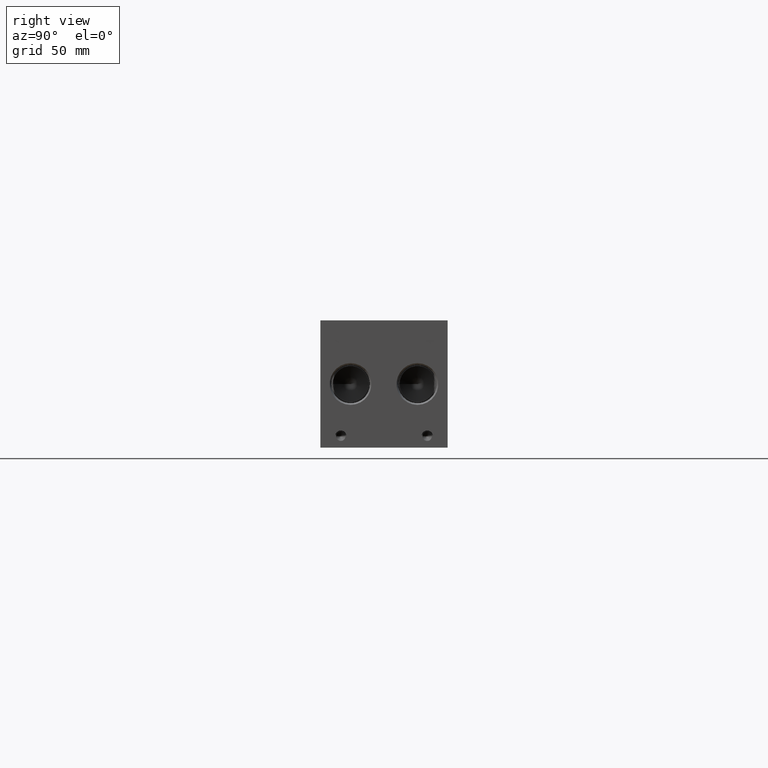
[diagram: clean part render]
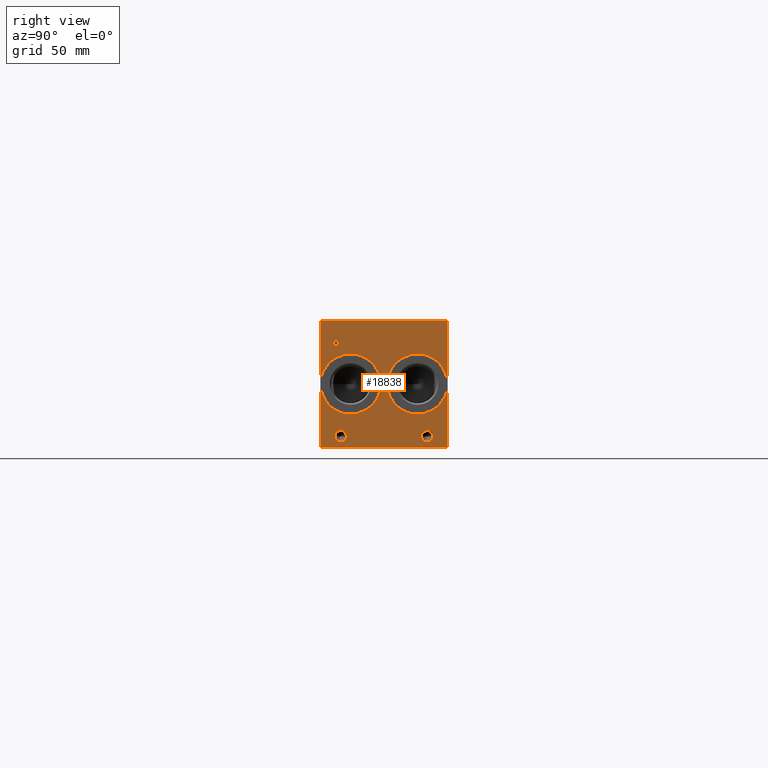
[diagram: same view with one face highlighted and labeled with its STEP entity id]
A machine part, right view. The second image highlights one B-rep face of the part: STEP entity #18838.
In plain terms, the highlighted planar face has unit normal (1, 0, 0).
Its self-contained STEP definition (entity closure, byte-faithful):
#310=CIRCLE('',#19883,3.9624);
#311=CIRCLE('',#19884,3.9624);
#312=CIRCLE('',#19885,3.9624);
#313=CIRCLE('',#19886,3.9624);
#314=CIRCLE('',#19887,21.0185);
#315=CIRCLE('',#19888,21.0185);
#316=CIRCLE('',#19889,21.0185);
#317=CIRCLE('',#19890,21.0185);
#956=FACE_BOUND('',#2957,.T.);
#957=FACE_BOUND('',#2958,.T.);
#958=FACE_BOUND('',#2959,.T.);
#959=FACE_BOUND('',#2960,.T.);
#960=FACE_BOUND('',#2961,.T.);
#961=FACE_BOUND('',#2962,.T.);
#1164=B_SPLINE_CURVE_WITH_KNOTS('',2,(#25967,#25968,#25969,#25970),
 .UNSPECIFIED.,.F.,.F.,(3,1,3),(0.,1.,2.),.UNSPECIFIED.);
#1166=B_SPLINE_CURVE_WITH_KNOTS('',2,(#25988,#25989,#25990,#25991),
 .UNSPECIFIED.,.F.,.F.,(3,1,3),(0.,1.,2.),.UNSPECIFIED.);
#1168=B_SPLINE_CURVE_WITH_KNOTS('',2,(#26037,#26038,#26039,#26040),
 .UNSPECIFIED.,.F.,.F.,(3,1,3),(0.,1.,2.),.UNSPECIFIED.);
#1170=B_SPLINE_CURVE_WITH_KNOTS('',2,(#26055,#26056,#26057,#26058),
 .UNSPECIFIED.,.F.,.F.,(3,1,3),(0.,1.,2.),.UNSPECIFIED.);
#1917=FACE_OUTER_BOUND('',#2956,.T.);
#2956=EDGE_LOOP('',(#12255,#12256,#12257,#12258));
#2957=EDGE_LOOP('',(#12259,#12260,#12261,#12262,#12263,#12264,#12265,#12266));
#2958=EDGE_LOOP('',(#12267,#12268));
#2959=EDGE_LOOP('',(#12269,#12270));
#2960=EDGE_LOOP('',(#12271,#12272));
#2961=EDGE_LOOP('',(#12273,#12274));
#2962=EDGE_LOOP('',(#12275,#12276,#12277,#12278,#12279,#12280,#12281,#12282,
#12283));
#4168=LINE('',#25817,#5801);
#4172=LINE('',#25825,#5805);
#4175=LINE('',#25831,#5808);
#4178=LINE('',#25837,#5811);
#4181=LINE('',#25843,#5814);
#4184=LINE('',#25849,#5817);
#4187=LINE('',#25855,#5820);
#4190=LINE('',#25860,#5823);
#4208=LINE('',#26000,#5841);
#4211=LINE('',#26006,#5844);
#4214=LINE('',#26012,#5847);
#4217=LINE('',#26018,#5850);
#4220=LINE('',#26024,#5853);
#4224=LINE('',#26067,#5857);
#4225=LINE('',#26069,#5858);
#4226=LINE('',#26071,#5859);
#4227=LINE('',#26072,#5860);
#5801=VECTOR('',#21306,10.);
#5805=VECTOR('',#21312,10.);
#5808=VECTOR('',#21317,10.);
#5811=VECTOR('',#21322,10.);
#5814=VECTOR('',#21327,10.);
#5817=VECTOR('',#21332,10.);
#5820=VECTOR('',#21337,10.);
#5823=VECTOR('',#21342,10.);
#5841=VECTOR('',#21370,10.);
#5844=VECTOR('',#21375,10.);
#5847=VECTOR('',#21380,10.);
#5850=VECTOR('',#21385,10.);
#5853=VECTOR('',#21390,10.);
#5857=VECTOR('',#21398,10.);
#5858=VECTOR('',#21399,10.);
#5859=VECTOR('',#21400,10.);
#5860=VECTOR('',#21401,10.);
#7434=VERTEX_POINT('',#25815);
#7435=VERTEX_POINT('',#25816);
#7438=VERTEX_POINT('',#25824);
#7440=VERTEX_POINT('',#25830);
#7442=VERTEX_POINT('',#25836);
#7444=VERTEX_POINT('',#25842);
#7446=VERTEX_POINT('',#25848);
#7448=VERTEX_POINT('',#25854);
#7464=VERTEX_POINT('',#25965);
#7465=VERTEX_POINT('',#25966);
#7468=VERTEX_POINT('',#25987);
#7470=VERTEX_POINT('',#25999);
#7472=VERTEX_POINT('',#26005);
#7474=VERTEX_POINT('',#26011);
#7476=VERTEX_POINT('',#26017);
#7478=VERTEX_POINT('',#26023);
#7480=VERTEX_POINT('',#26036);
#7482=VERTEX_POINT('',#26065);
#7483=VERTEX_POINT('',#26066);
#7484=VERTEX_POINT('',#26068);
#7485=VERTEX_POINT('',#26070);
#7486=VERTEX_POINT('',#26073);
#7487=VERTEX_POINT('',#26074);
#7488=VERTEX_POINT('',#26077);
#7489=VERTEX_POINT('',#26078);
#7490=VERTEX_POINT('',#26081);
#7491=VERTEX_POINT('',#26082);
#7492=VERTEX_POINT('',#26085);
#7493=VERTEX_POINT('',#26086);
#9367=EDGE_CURVE('',#7434,#7435,#4168,.T.);
#9371=EDGE_CURVE('',#7438,#7434,#4172,.T.);
#9374=EDGE_CURVE('',#7440,#7438,#4175,.T.);
#9377=EDGE_CURVE('',#7442,#7440,#4178,.T.);
#9380=EDGE_CURVE('',#7444,#7442,#4181,.T.);
#9383=EDGE_CURVE('',#7446,#7444,#4184,.T.);
#9386=EDGE_CURVE('',#7448,#7446,#4187,.T.);
#9389=EDGE_CURVE('',#7435,#7448,#4190,.T.);
#9412=EDGE_CURVE('',#7464,#7465,#1164,.T.);
#9416=EDGE_CURVE('',#7468,#7464,#1166,.T.);
#9419=EDGE_CURVE('',#7470,#7468,#4208,.T.);
#9422=EDGE_CURVE('',#7472,#7470,#4211,.T.);
#9425=EDGE_CURVE('',#7474,#7472,#4214,.T.);
#9428=EDGE_CURVE('',#7476,#7474,#4217,.T.);
#9431=EDGE_CURVE('',#7478,#7476,#4220,.T.);
#9434=EDGE_CURVE('',#7480,#7478,#1168,.T.);
#9437=EDGE_CURVE('',#7465,#7480,#1170,.T.);
#9439=EDGE_CURVE('',#7482,#7483,#4224,.T.);
#9440=EDGE_CURVE('',#7483,#7484,#4225,.T.);
#9441=EDGE_CURVE('',#7485,#7484,#4226,.T.);
#9442=EDGE_CURVE('',#7482,#7485,#4227,.T.);
#9443=EDGE_CURVE('',#7486,#7487,#310,.T.);
#9444=EDGE_CURVE('',#7487,#7486,#311,.T.);
#9445=EDGE_CURVE('',#7488,#7489,#312,.T.);
#9446=EDGE_CURVE('',#7489,#7488,#313,.T.);
#9447=EDGE_CURVE('',#7490,#7491,#314,.T.);
#9448=EDGE_CURVE('',#7491,#7490,#315,.T.);
#9449=EDGE_CURVE('',#7492,#7493,#316,.T.);
#9450=EDGE_CURVE('',#7493,#7492,#317,.T.);
#12255=ORIENTED_EDGE('',*,*,#9439,.T.);
#12256=ORIENTED_EDGE('',*,*,#9440,.T.);
#12257=ORIENTED_EDGE('',*,*,#9441,.F.);
#12258=ORIENTED_EDGE('',*,*,#9442,.F.);
#12259=ORIENTED_EDGE('',*,*,#9367,.T.);
#12260=ORIENTED_EDGE('',*,*,#9389,.T.);
#12261=ORIENTED_EDGE('',*,*,#9386,.T.);
#12262=ORIENTED_EDGE('',*,*,#9383,.T.);
#12263=ORIENTED_EDGE('',*,*,#9380,.T.);
#12264=ORIENTED_EDGE('',*,*,#9377,.T.);
#12265=ORIENTED_EDGE('',*,*,#9374,.T.);
#12266=ORIENTED_EDGE('',*,*,#9371,.T.);
#12267=ORIENTED_EDGE('',*,*,#9443,.T.);
#12268=ORIENTED_EDGE('',*,*,#9444,.T.);
#12269=ORIENTED_EDGE('',*,*,#9445,.T.);
#12270=ORIENTED_EDGE('',*,*,#9446,.T.);
#12271=ORIENTED_EDGE('',*,*,#9447,.T.);
#12272=ORIENTED_EDGE('',*,*,#9448,.T.);
#12273=ORIENTED_EDGE('',*,*,#9449,.T.);
#12274=ORIENTED_EDGE('',*,*,#9450,.T.);
#12275=ORIENTED_EDGE('',*,*,#9412,.T.);
#12276=ORIENTED_EDGE('',*,*,#9437,.T.);
#12277=ORIENTED_EDGE('',*,*,#9434,.T.);
#12278=ORIENTED_EDGE('',*,*,#9431,.T.);
#12279=ORIENTED_EDGE('',*,*,#9428,.T.);
#12280=ORIENTED_EDGE('',*,*,#9425,.T.);
#12281=ORIENTED_EDGE('',*,*,#9422,.T.);
#12282=ORIENTED_EDGE('',*,*,#9419,.T.);
#12283=ORIENTED_EDGE('',*,*,#9416,.T.);
#17689=PLANE('',#19882);
#18838=ADVANCED_FACE('',(#1917,#956,#957,#958,#959,#960,#961),#17689,.T.);
#19882=AXIS2_PLACEMENT_3D('',#26064,#21396,#21397);
#19883=AXIS2_PLACEMENT_3D('',#26075,#21402,#21403);
#19884=AXIS2_PLACEMENT_3D('',#26076,#21404,#21405);
#19885=AXIS2_PLACEMENT_3D('',#26079,#21406,#21407);
#19886=AXIS2_PLACEMENT_3D('',#26080,#21408,#21409);
#19887=AXIS2_PLACEMENT_3D('',#26083,#21410,#21411);
#19888=AXIS2_PLACEMENT_3D('',#26084,#21412,#21413);
#19889=AXIS2_PLACEMENT_3D('',#26087,#21414,#21415);
#19890=AXIS2_PLACEMENT_3D('',#26088,#21416,#21417);
#21306=DIRECTION('',(0.,-1.,0.));
#21312=DIRECTION('',(0.,0.,-1.));
#21317=DIRECTION('',(0.,-1.,0.));
#21322=DIRECTION('',(0.,0.,-1.));
#21327=DIRECTION('',(0.,1.,0.));
#21332=DIRECTION('',(0.,0.,1.));
#21337=DIRECTION('',(0.,-1.,0.));
#21342=DIRECTION('',(0.,0.,1.));
#21370=DIRECTION('',(0.,1.,0.));
#21375=DIRECTION('',(0.,0.,1.));
#21380=DIRECTION('',(0.,-1.,0.));
#21385=DIRECTION('',(0.,0.,-1.));
#21390=DIRECTION('',(0.,-1.,0.));
#21396=DIRECTION('center_axis',(1.,0.,0.));
#21397=DIRECTION('ref_axis',(0.,1.,0.));
#21398=DIRECTION('',(0.,1.,0.));
#21399=DIRECTION('',(0.,0.,1.));
#21400=DIRECTION('',(0.,1.,0.));
#21401=DIRECTION('',(0.,0.,1.));
#21402=DIRECTION('center_axis',(-1.,0.,0.));
#21403=DIRECTION('ref_axis',(0.,1.,0.));
#21404=DIRECTION('center_axis',(-1.,0.,0.));
#21405=DIRECTION('ref_axis',(0.,1.,0.));
#21406=DIRECTION('center_axis',(-1.,0.,0.));
#21407=DIRECTION('ref_axis',(0.,1.,0.));
#21408=DIRECTION('center_axis',(-1.,0.,0.));
#21409=DIRECTION('ref_axis',(0.,1.,0.));
#21410=DIRECTION('center_axis',(-1.,0.,0.));
#21411=DIRECTION('ref_axis',(0.,0.,-1.));
#21412=DIRECTION('center_axis',(-1.,0.,0.));
#21413=DIRECTION('ref_axis',(0.,0.,-1.));
#21414=DIRECTION('center_axis',(-1.,0.,0.));
#21415=DIRECTION('ref_axis',(0.,0.,-1.));
#21416=DIRECTION('center_axis',(-1.,0.,0.));
#21417=DIRECTION('ref_axis',(0.,0.,-1.));
#25815=CARTESIAN_POINT('',(495.3,77.137165271453,68.58));
#25816=CARTESIAN_POINT('',(495.3,76.2932430799135,68.58));
#25817=CARTESIAN_POINT('',(495.3,38.5685826357265,68.58));
#25824=CARTESIAN_POINT('',(495.3,77.137165271453,74.1787033194816));
#25825=CARTESIAN_POINT('',(495.3,77.137165271453,37.0893516597408));
#25830=CARTESIAN_POINT('',(495.3,79.2675542183881,74.1787033194816));
#25831=CARTESIAN_POINT('',(495.3,39.633777109194,74.1787033194816));
#25836=CARTESIAN_POINT('',(495.3,79.2675542183881,74.9299999046326));
#25837=CARTESIAN_POINT('',(495.3,79.2675542183881,37.4649999523163));
#25842=CARTESIAN_POINT('',(495.3,74.1628541329784,74.9299999046326));
#25843=CARTESIAN_POINT('',(495.3,37.0814270664892,74.9299999046326));
#25848=CARTESIAN_POINT('',(495.3,74.1628541329784,74.1787033194816));
#25849=CARTESIAN_POINT('',(495.3,74.1628541329784,37.0893516597408));
#25854=CARTESIAN_POINT('',(495.3,76.2932430799135,74.1787033194816));
#25855=CARTESIAN_POINT('',(495.3,38.1466215399568,74.1787033194816));
#25860=CARTESIAN_POINT('',(495.3,76.2932430799135,34.29));
#25965=CARTESIAN_POINT('',(495.3,12.2825672023594,74.5337681439707));
#25966=CARTESIAN_POINT('',(495.3,13.039009654532,73.015737372604));
#25967=CARTESIAN_POINT('Ctrl Pts',(495.3,12.2825672023594,74.5337681439707));
#25968=CARTESIAN_POINT('Ctrl Pts',(495.3,12.6376320268486,74.2919123939564));
#25969=CARTESIAN_POINT('Ctrl Pts',(495.3,13.039009654532,73.5457616758269));
#25970=CARTESIAN_POINT('Ctrl Pts',(495.3,13.039009654532,73.015737372604));
#25987=CARTESIAN_POINT('',(495.3,10.6204521543883,74.9299999046326));
#25988=CARTESIAN_POINT('Ctrl Pts',(495.3,10.6204521543883,74.9299999046326));
#25989=CARTESIAN_POINT('Ctrl Pts',(495.3,11.1864975267624,74.9299999046326));
#25990=CARTESIAN_POINT('Ctrl Pts',(495.3,11.978961048086,74.7447486918556));
#25991=CARTESIAN_POINT('Ctrl Pts',(495.3,12.2825672023594,74.5337681439707));
#25999=CARTESIAN_POINT('',(495.3,9.02523337769779,74.9299999046326));
#26000=CARTESIAN_POINT('',(495.3,4.51261668884889,74.9299999046326));
#26005=CARTESIAN_POINT('',(495.3,9.02523337769779,68.58));
#26006=CARTESIAN_POINT('',(495.3,9.02523337769779,34.29));
#26011=CARTESIAN_POINT('',(495.3,9.86915556923729,68.58));
#26012=CARTESIAN_POINT('',(495.3,4.93457778461864,68.58));
#26017=CARTESIAN_POINT('',(495.3,9.86915556923729,70.9470988299279));
#26018=CARTESIAN_POINT('',(495.3,9.86915556923729,35.4735494149639));
#26023=CARTESIAN_POINT('',(495.3,10.5844310852372,70.9470988299279));
#26024=CARTESIAN_POINT('',(495.3,5.29221554261861,70.9470988299279));
#26036=CARTESIAN_POINT('',(495.3,12.4832560162011,71.6057698086904));
#26037=CARTESIAN_POINT('Ctrl Pts',(495.3,12.4832560162011,71.6057698086904));
#26038=CARTESIAN_POINT('Ctrl Pts',(495.3,12.1539205268198,71.2815801863307));
#26039=CARTESIAN_POINT('Ctrl Pts',(495.3,11.2636855320861,70.9470988299279));
#26040=CARTESIAN_POINT('Ctrl Pts',(495.3,10.5844310852372,70.9470988299279));
#26055=CARTESIAN_POINT('Ctrl Pts',(495.3,13.039009654532,73.015737372604));
#26056=CARTESIAN_POINT('Ctrl Pts',(495.3,13.039009654532,72.6040680108774));
#26057=CARTESIAN_POINT('Ctrl Pts',(495.3,12.7456952343018,71.8630631597695));
#26058=CARTESIAN_POINT('Ctrl Pts',(495.3,12.4832560162011,71.6057698086904));
#26064=CARTESIAN_POINT('Origin',(495.3,0.,0.));
#26065=CARTESIAN_POINT('',(495.3,0.,0.));
#26066=CARTESIAN_POINT('',(495.3,88.9,0.));
#26067=CARTESIAN_POINT('',(495.3,0.,0.));
#26068=CARTESIAN_POINT('',(495.3,88.9,88.9));
#26069=CARTESIAN_POINT('',(495.3,88.9,0.));
#26070=CARTESIAN_POINT('',(495.3,0.,88.9));
#26071=CARTESIAN_POINT('',(495.3,0.,88.9));
#26072=CARTESIAN_POINT('',(495.3,0.,0.));
#26073=CARTESIAN_POINT('',(495.3,78.5876,7.9248));
#26074=CARTESIAN_POINT('',(495.3,70.6628,7.9248));
#26075=CARTESIAN_POINT('Origin',(495.3,74.6252,7.9248));
#26076=CARTESIAN_POINT('Origin',(495.3,74.6252,7.9248));
#26077=CARTESIAN_POINT('',(495.3,18.2372,7.9248));
#26078=CARTESIAN_POINT('',(495.3,10.3124,7.9248));
#26079=CARTESIAN_POINT('Origin',(495.3,14.2748,7.9248));
#26080=CARTESIAN_POINT('Origin',(495.3,14.2748,7.9248));
#26081=CARTESIAN_POINT('',(495.3,21.082,23.4315));
#26082=CARTESIAN_POINT('',(495.3,21.082,65.4685));
#26083=CARTESIAN_POINT('Origin',(495.3,21.082,44.45));
#26084=CARTESIAN_POINT('Origin',(495.3,21.082,44.45));
#26085=CARTESIAN_POINT('',(495.3,67.818,23.4315));
#26086=CARTESIAN_POINT('',(495.3,67.818,65.4685));
#26087=CARTESIAN_POINT('Origin',(495.3,67.818,44.45));
#26088=CARTESIAN_POINT('Origin',(495.3,67.818,44.45));